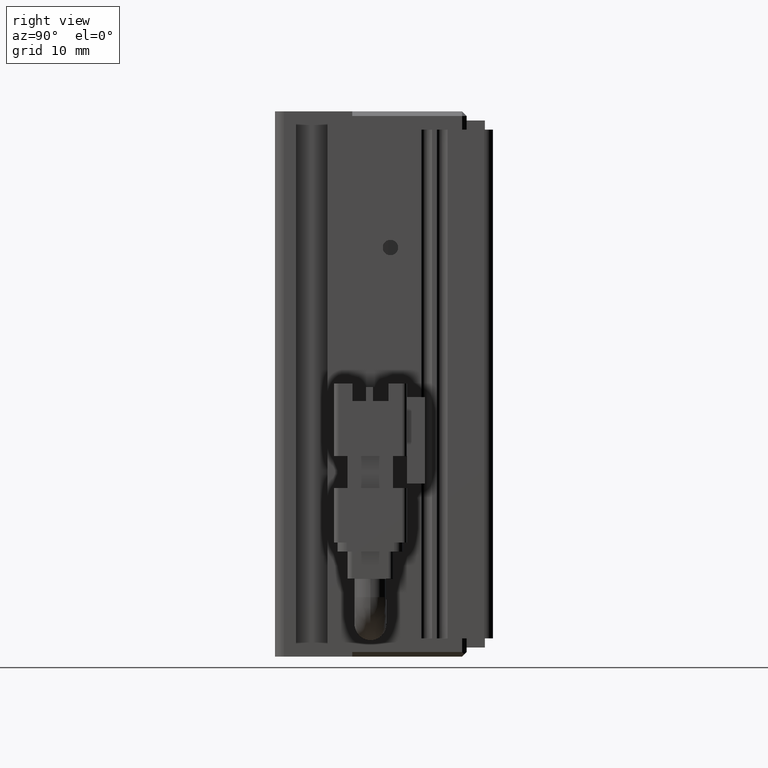
[diagram: clean part render]
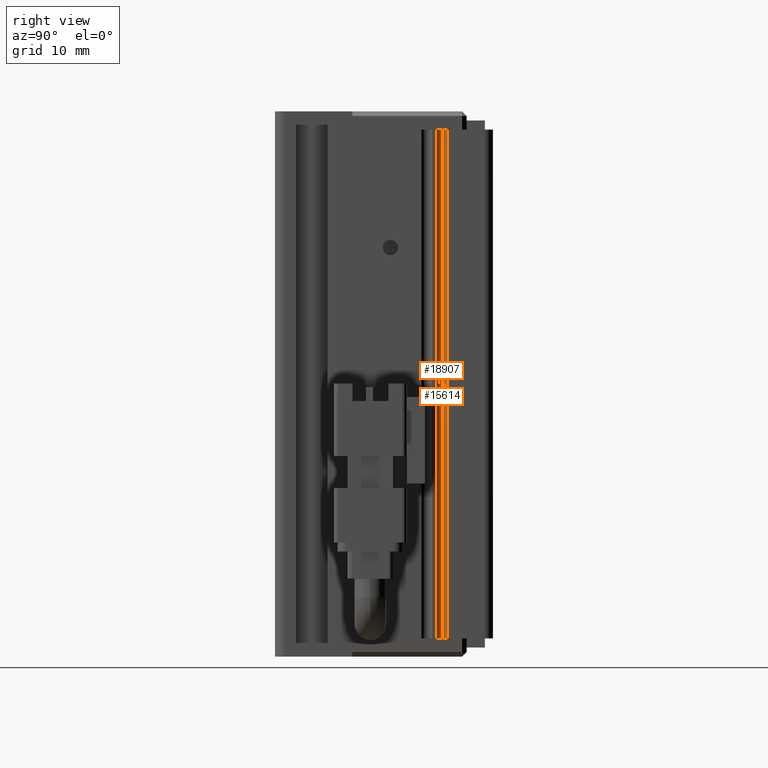
[diagram: same view with one multi-face feature highlighted, each face labeled with its STEP entity id]
A machine part, right view. The highlighted faces form ONE feature: a constant-radius fillet chain: 2 tangent blend faces with common blend radius 0.6 mm. The faces share edges in the B-rep.
Their STEP definitions:
[1] entity #18907 (Cylinder):
#46 = CARTESIAN_POINT ( 'NONE',  ( 40.32537974683542400, 25.48379746835444200, -85.00000000000000000 ) ) ;
#391 = EDGE_CURVE ( 'NONE', #27727, #8044, #26848, .T. ) ;
#527 = EDGE_CURVE ( 'NONE', #20851, #27727, #15020, .T. ) ;
#905 = CARTESIAN_POINT ( 'NONE',  ( 40.32537974683542400, 25.48379746835444200, -143.0000000000000300 ) ) ;
#1809 = ORIENTED_EDGE ( 'NONE', *, *, #391, .F. ) ;
#2217 = EDGE_CURVE ( 'NONE', #20851, #11560, #3164, .T. ) ;
#3164 = LINE ( 'NONE', #17585, #4530 ) ;
#3464 = CARTESIAN_POINT ( 'NONE',  ( 40.92537974683542500, 25.48379746835444200, -85.00000000000000000 ) ) ;
#4373 = CYLINDRICAL_SURFACE ( 'NONE', #22676, 0.6000000000000033100 ) ;
#4530 = VECTOR ( 'NONE', #10726, 1000.000000000000000 ) ;
#5596 = DIRECTION ( 'NONE',  ( -0.0000000000000000000, -0.0000000000000000000, -1.000000000000000000 ) ) ;
#6054 = DIRECTION ( 'NONE',  ( -1.000000000000000000, 0.0000000000000000000, 0.0000000000000000000 ) ) ;
#7133 = EDGE_CURVE ( 'NONE', #8044, #11560, #20072, .T. ) ;
#7713 = CARTESIAN_POINT ( 'NONE',  ( 40.92537974683542500, 25.48379746835444200, -87.00000000000001400 ) ) ;
#8044 = VERTEX_POINT ( 'NONE', #905 ) ;
#8095 = ORIENTED_EDGE ( 'NONE', *, *, #2217, .T. ) ;
#8478 = CARTESIAN_POINT ( 'NONE',  ( 40.92537974683542500, 24.88379746835444100, -143.0000000000000300 ) ) ;
#10726 = DIRECTION ( 'NONE',  ( -0.0000000000000000000, -0.0000000000000000000, -1.000000000000000000 ) ) ;
#11560 = VERTEX_POINT ( 'NONE', #8478 ) ;
#13613 = CARTESIAN_POINT ( 'NONE',  ( 40.92537974683542500, 24.88379746835444100, -87.00000000000001400 ) ) ;
#14644 = DIRECTION ( 'NONE',  ( 0.0000000000000000000, 0.0000000000000000000, 1.000000000000000000 ) ) ;
#15020 = CIRCLE ( 'NONE', #24777, 0.6000000000000033100 ) ;
#17585 = CARTESIAN_POINT ( 'NONE',  ( 40.92537974683542500, 24.88379746835444100, -85.00000000000000000 ) ) ;
#18181 = AXIS2_PLACEMENT_3D ( 'NONE', #28102, #14644, #25771 ) ;
#18315 = EDGE_LOOP ( 'NONE', ( #1809, #27172, #8095, #21748 ) ) ;
#18907 = ADVANCED_FACE ( 'NONE', ( #21253 ), #4373, .F. ) ;
#20072 = CIRCLE ( 'NONE', #18181, 0.6000000000000033100 ) ;
#20243 = VECTOR ( 'NONE', #26271, 1000.000000000000000 ) ;
#20851 = VERTEX_POINT ( 'NONE', #13613 ) ;
#21253 = FACE_OUTER_BOUND ( 'NONE', #18315, .T. ) ;
#21748 = ORIENTED_EDGE ( 'NONE', *, *, #7133, .F. ) ;
#22676 = AXIS2_PLACEMENT_3D ( 'NONE', #3464, #25626, #6054 ) ;
#23421 = DIRECTION ( 'NONE',  ( -1.000000000000000000, 0.0000000000000000000, 0.0000000000000000000 ) ) ;
#24608 = CARTESIAN_POINT ( 'NONE',  ( 40.32537974683542400, 25.48379746835444200, -87.00000000000001400 ) ) ;
#24777 = AXIS2_PLACEMENT_3D ( 'NONE', #7713, #5596, #23421 ) ;
#25626 = DIRECTION ( 'NONE',  ( -0.0000000000000000000, -0.0000000000000000000, -1.000000000000000000 ) ) ;
#25771 = DIRECTION ( 'NONE',  ( -1.000000000000000000, 0.0000000000000000000, 0.0000000000000000000 ) ) ;
#26271 = DIRECTION ( 'NONE',  ( -0.0000000000000000000, -0.0000000000000000000, -1.000000000000000000 ) ) ;
#26848 = LINE ( 'NONE', #46, #20243 ) ;
#27172 = ORIENTED_EDGE ( 'NONE', *, *, #527, .F. ) ;
#27727 = VERTEX_POINT ( 'NONE', #24608 ) ;
#28102 = CARTESIAN_POINT ( 'NONE',  ( 40.92537974683542500, 25.48379746835444200, -143.0000000000000300 ) ) ;
[2] entity #15614 (Cylinder):
#46 = CARTESIAN_POINT ( 'NONE',  ( 40.32537974683542400, 25.48379746835444200, -85.00000000000000000 ) ) ;
#391 = EDGE_CURVE ( 'NONE', #27727, #8044, #26848, .T. ) ;
#465 = AXIS2_PLACEMENT_3D ( 'NONE', #18177, #3078, #24840 ) ;
#574 = LINE ( 'NONE', #21175, #9435 ) ;
#905 = CARTESIAN_POINT ( 'NONE',  ( 40.32537974683542400, 25.48379746835444200, -143.0000000000000300 ) ) ;
#1001 = DIRECTION ( 'NONE',  ( -1.000000000000000000, 0.0000000000000000000, 0.0000000000000000000 ) ) ;
#2980 = VERTEX_POINT ( 'NONE', #12494 ) ;
#3078 = DIRECTION ( 'NONE',  ( 0.0000000000000000000, 0.0000000000000000000, 1.000000000000000000 ) ) ;
#5540 = CARTESIAN_POINT ( 'NONE',  ( 40.92537974683542500, 26.08379746835444000, -143.0000000000000300 ) ) ;
#5883 = EDGE_LOOP ( 'NONE', ( #10643, #12007, #11648, #10959 ) ) ;
#6471 = EDGE_CURVE ( 'NONE', #27332, #2980, #574, .T. ) ;
#6695 = AXIS2_PLACEMENT_3D ( 'NONE', #8640, #23680, #19715 ) ;
#7503 = CIRCLE ( 'NONE', #6695, 0.6000000000000033100 ) ;
#7576 = CARTESIAN_POINT ( 'NONE',  ( 40.92537974683542500, 25.48379746835444200, -85.00000000000000000 ) ) ;
#8044 = VERTEX_POINT ( 'NONE', #905 ) ;
#8640 = CARTESIAN_POINT ( 'NONE',  ( 40.92537974683542500, 25.48379746835444200, -87.00000000000001400 ) ) ;
#8861 = AXIS2_PLACEMENT_3D ( 'NONE', #7576, #25791, #1001 ) ;
#9435 = VECTOR ( 'NONE', #9977, 1000.000000000000000 ) ;
#9977 = DIRECTION ( 'NONE',  ( 0.0000000000000000000, 0.0000000000000000000, 1.000000000000000000 ) ) ;
#10643 = ORIENTED_EDGE ( 'NONE', *, *, #28528, .F. ) ;
#10959 = ORIENTED_EDGE ( 'NONE', *, *, #6471, .T. ) ;
#11648 = ORIENTED_EDGE ( 'NONE', *, *, #27141, .F. ) ;
#12007 = ORIENTED_EDGE ( 'NONE', *, *, #391, .T. ) ;
#12494 = CARTESIAN_POINT ( 'NONE',  ( 40.92537974683542500, 26.08379746835444000, -87.00000000000001400 ) ) ;
#15614 = ADVANCED_FACE ( 'NONE', ( #21905 ), #21194, .F. ) ;
#18177 = CARTESIAN_POINT ( 'NONE',  ( 40.92537974683542500, 25.48379746835444200, -143.0000000000000300 ) ) ;
#19715 = DIRECTION ( 'NONE',  ( -1.000000000000000000, 0.0000000000000000000, 0.0000000000000000000 ) ) ;
#20243 = VECTOR ( 'NONE', #26271, 1000.000000000000000 ) ;
#21175 = CARTESIAN_POINT ( 'NONE',  ( 40.92537974683542500, 26.08379746835444000, -85.00000000000000000 ) ) ;
#21194 = CYLINDRICAL_SURFACE ( 'NONE', #8861, 0.6000000000000033100 ) ;
#21905 = FACE_OUTER_BOUND ( 'NONE', #5883, .T. ) ;
#23088 = CIRCLE ( 'NONE', #465, 0.6000000000000033100 ) ;
#23680 = DIRECTION ( 'NONE',  ( -0.0000000000000000000, -0.0000000000000000000, -1.000000000000000000 ) ) ;
#24608 = CARTESIAN_POINT ( 'NONE',  ( 40.32537974683542400, 25.48379746835444200, -87.00000000000001400 ) ) ;
#24840 = DIRECTION ( 'NONE',  ( -1.000000000000000000, 0.0000000000000000000, 0.0000000000000000000 ) ) ;
#25791 = DIRECTION ( 'NONE',  ( -0.0000000000000000000, -0.0000000000000000000, -1.000000000000000000 ) ) ;
#26271 = DIRECTION ( 'NONE',  ( -0.0000000000000000000, -0.0000000000000000000, -1.000000000000000000 ) ) ;
#26848 = LINE ( 'NONE', #46, #20243 ) ;
#27141 = EDGE_CURVE ( 'NONE', #27332, #8044, #23088, .T. ) ;
#27332 = VERTEX_POINT ( 'NONE', #5540 ) ;
#27727 = VERTEX_POINT ( 'NONE', #24608 ) ;
#28528 = EDGE_CURVE ( 'NONE', #27727, #2980, #7503, .T. ) ;